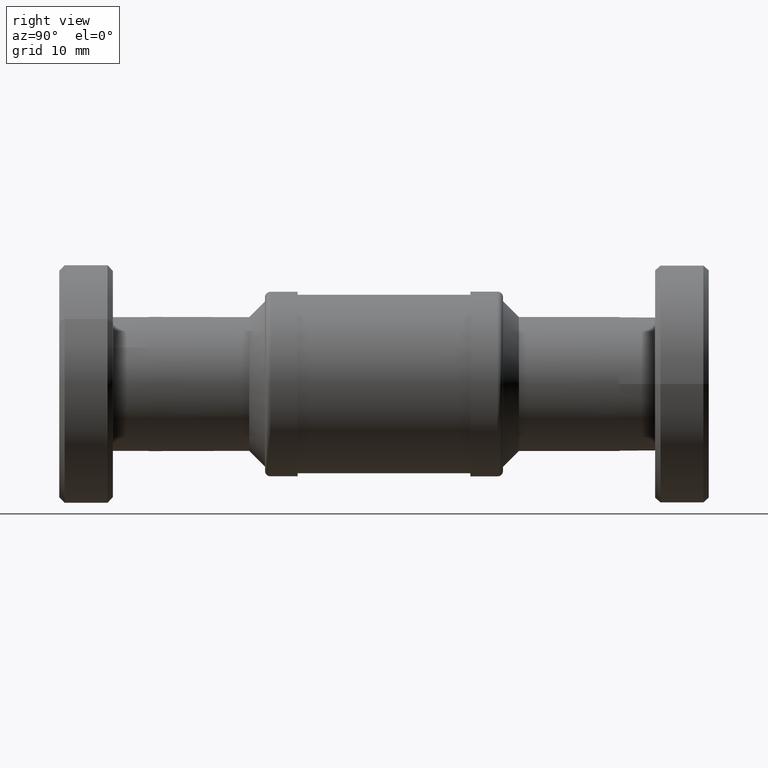
[diagram: clean part render]
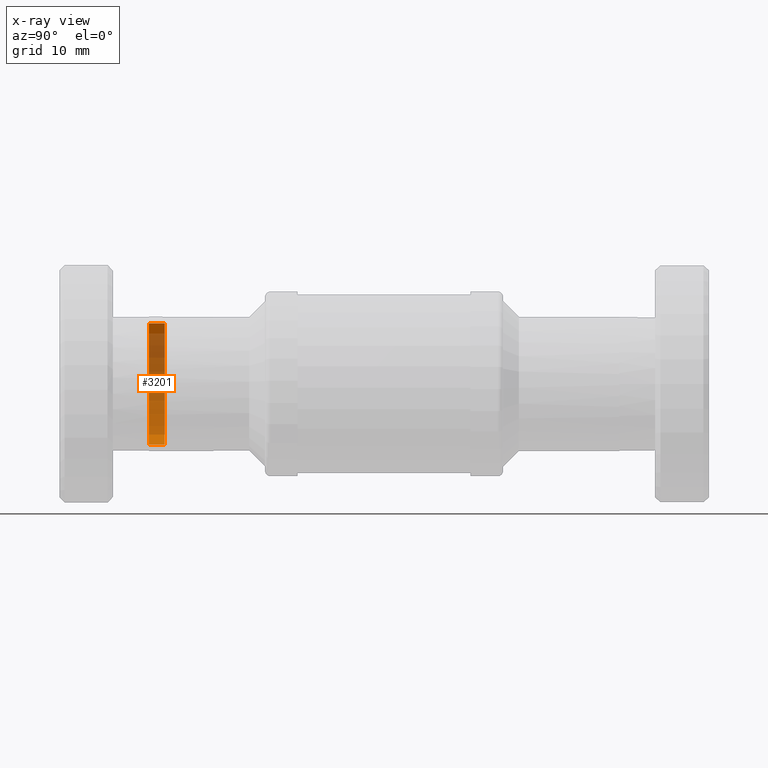
[diagram: x-ray — body ghosted, one internal face saturated and labeled with its STEP entity id]
A machine part, right view, then the same camera in x-ray: the body is ghosted and one INTERNAL B-rep face — a face not visible from any outside direction — is saturated and labeled: STEP entity #3201.
In plain terms, the highlighted cylindrical surface (partial cylindrical patch) has radius 8.636 mm, axis along (0, 1, 0).
Its self-contained STEP definition (entity closure, byte-faithful):
#28 = CYLINDRICAL_SURFACE ( 'NONE', #711, 0.3399999999999999689 ) ;
#413 = DIRECTION ( 'NONE',  ( 0.0000000000000000000, 1.000000000000000000, 0.0000000000000000000 ) ) ;
#711 = AXIS2_PLACEMENT_3D ( 'NONE', #2546, #1071, #1034 ) ;
#713 = EDGE_CURVE ( 'NONE', #1436, #1975, #2170, .T. ) ;
#928 = LINE ( 'NONE', #2718, #1740 ) ;
#1033 = EDGE_LOOP ( 'NONE', ( #1349, #2148, #2988, #3040 ) ) ;
#1034 = DIRECTION ( 'NONE',  ( 0.08622518499638290312, 0.0000000000000000000, 0.9962756734319772045 ) ) ;
#1071 = DIRECTION ( 'NONE',  ( 0.0000000000000000000, 1.000000000000000000, 0.0000000000000000000 ) ) ;
#1078 = LINE ( 'NONE', #1094, #1589 ) ;
#1094 = CARTESIAN_POINT ( 'NONE',  ( 0.02931656289877029517, -3.023275109170305619, 0.3387337289668722051 ) ) ;
#1302 = EDGE_CURVE ( 'NONE', #1975, #3228, #1078, .T. ) ;
#1349 = ORIENTED_EDGE ( 'NONE', *, *, #713, .F. ) ;
#1369 = CARTESIAN_POINT ( 'NONE',  ( 0.02931656289877029517, -3.130000000000000338, 0.3387337289668722051 ) ) ;
#1436 = VERTEX_POINT ( 'NONE', #3182 ) ;
#1491 = AXIS2_PLACEMENT_3D ( 'NONE', #2066, #1815, #2841 ) ;
#1537 = DIRECTION ( 'NONE',  ( 0.0000000000000000000, 1.000000000000000000, 0.0000000000000000000 ) ) ;
#1565 = DIRECTION ( 'NONE',  ( 0.08622518499638290312, 0.0000000000000000000, 0.9962756734319772045 ) ) ;
#1584 = EDGE_CURVE ( 'NONE', #1952, #3228, #2456, .T. ) ;
#1589 = VECTOR ( 'NONE', #2110, 39.37007874015748143 ) ;
#1740 = VECTOR ( 'NONE', #413, 39.37007874015748143 ) ;
#1815 = DIRECTION ( 'NONE',  ( 0.0000000000000000000, 1.000000000000000000, 0.0000000000000000000 ) ) ;
#1952 = VERTEX_POINT ( 'NONE', #2920 ) ;
#1975 = VERTEX_POINT ( 'NONE', #1369 ) ;
#2066 = CARTESIAN_POINT ( 'NONE',  ( 1.102182119232617048E-16, -3.040000000000000480, 0.0000000000000000000 ) ) ;
#2110 = DIRECTION ( 'NONE',  ( 0.0000000000000000000, 1.000000000000000000, 0.0000000000000000000 ) ) ;
#2148 = ORIENTED_EDGE ( 'NONE', *, *, #2432, .T. ) ;
#2170 = CIRCLE ( 'NONE', #2376, 0.3399999999999999689 ) ;
#2376 = AXIS2_PLACEMENT_3D ( 'NONE', #3078, #1537, #1565 ) ;
#2432 = EDGE_CURVE ( 'NONE', #1436, #1952, #928, .T. ) ;
#2456 = CIRCLE ( 'NONE', #1491, 0.3399999999999999689 ) ;
#2546 = CARTESIAN_POINT ( 'NONE',  ( 1.102182119232617048E-16, -3.023275109170305619, 0.0000000000000000000 ) ) ;
#2561 = CARTESIAN_POINT ( 'NONE',  ( 0.02931656289877029517, -3.040000000000000480, 0.3387337289668722051 ) ) ;
#2718 = CARTESIAN_POINT ( 'NONE',  ( -0.02931656289877003149, -3.023275109170305619, -0.3387337289668722051 ) ) ;
#2841 = DIRECTION ( 'NONE',  ( 0.08622518499638290312, 0.0000000000000000000, 0.9962756734319772045 ) ) ;
#2844 = FACE_OUTER_BOUND ( 'NONE', #1033, .T. ) ;
#2920 = CARTESIAN_POINT ( 'NONE',  ( -0.02931656289877003843, -3.040000000000000480, -0.3387337289668722606 ) ) ;
#2988 = ORIENTED_EDGE ( 'NONE', *, *, #1584, .T. ) ;
#3040 = ORIENTED_EDGE ( 'NONE', *, *, #1302, .F. ) ;
#3078 = CARTESIAN_POINT ( 'NONE',  ( 1.102182119232617048E-16, -3.130000000000000338, 0.0000000000000000000 ) ) ;
#3182 = CARTESIAN_POINT ( 'NONE',  ( -0.02931656289877003843, -3.130000000000000338, -0.3387337289668722606 ) ) ;
#3201 = ADVANCED_FACE ( 'NONE', ( #2844 ), #28, .F. ) ;
#3228 = VERTEX_POINT ( 'NONE', #2561 ) ;